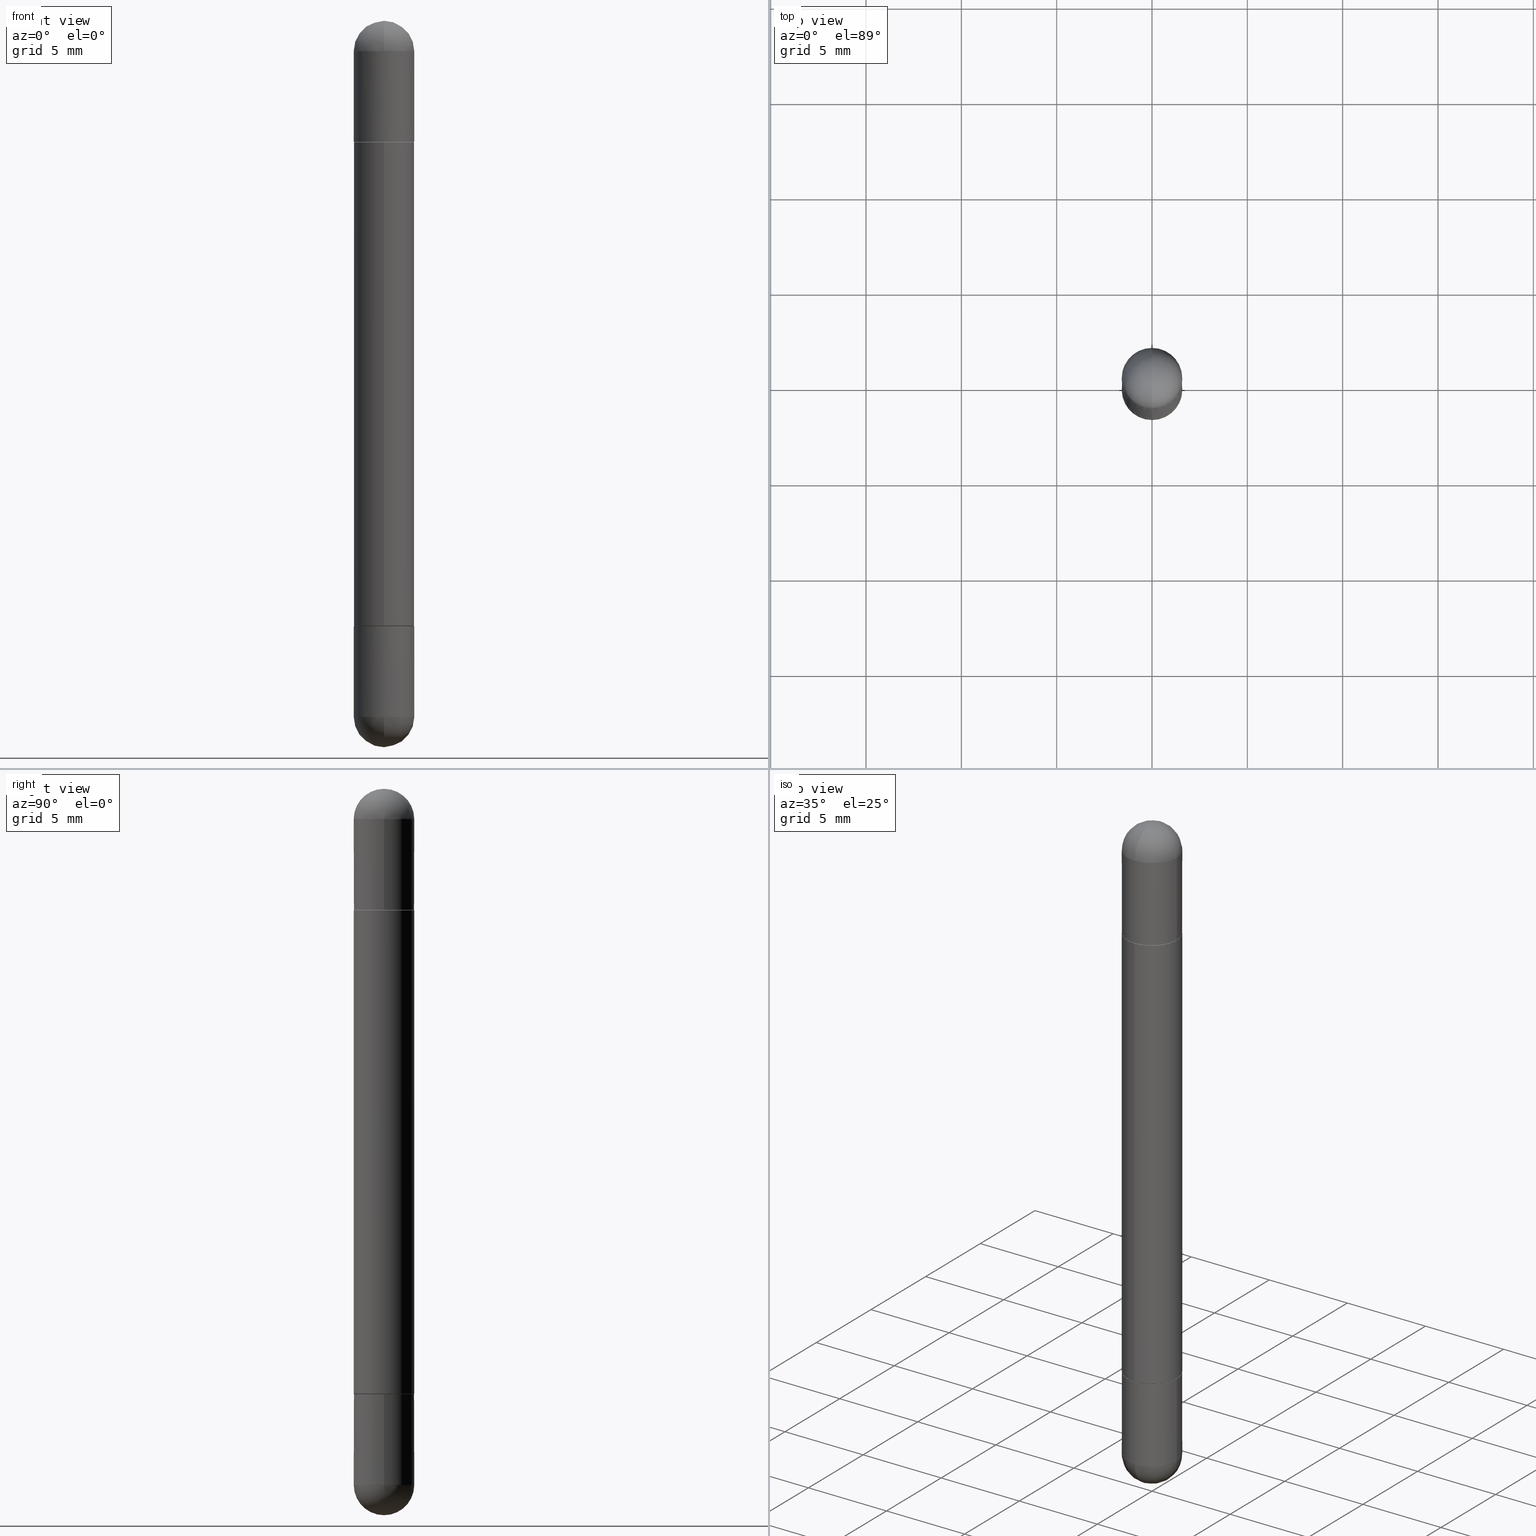
[diagram: canonical four-view strip — front | top / right | iso, engineering-drawing reading convention]
A machine part, canonical four-view strip (front | top / right | iso — engineering-drawing reading convention). The complete STEP part file that produces these views, byte-faithful:
ISO-10303-21;
HEADER;
FILE_DESCRIPTION (( 'STEP AP203' ),
    '1' );
FILE_NAME ('31414.STEP',
    '2024-03-01T12:41:39',
    ( '' ),
    ( '' ),
    'SwSTEP 2.0',
    'SolidWorks 2023',
    '' );
FILE_SCHEMA (( 'CONFIG_CONTROL_DESIGN' ));
ENDSEC;

DATA;
#1 = EDGE_LOOP ( 'NONE', ( #183, #119, #707, #574, #449 ) ) ;
#2 = FACE_OUTER_BOUND ( 'NONE', #755, .T. ) ;
#3 = AXIS2_PLACEMENT_3D ( 'NONE', #23, #145, #397 ) ;
#4 = DIRECTION ( 'NONE',  ( 1.000000000000000000, -6.982962677686261189E-15, 0.000000000000000000 ) ) ;
#5 = VECTOR ( 'NONE', #60, 39.37007874015748143 ) ;
#6 = CIRCLE ( 'NONE', #468, 0.06250000000000022204 ) ;
#7 = ORIENTED_EDGE ( 'NONE', *, *, #357, .T. ) ;
#8 = DIRECTION ( 'NONE',  ( 6.982962677686266711E-15, 1.000000000000000000, -4.370956789862805372E-15 ) ) ;
#9 = SPHERICAL_SURFACE ( 'NONE', #398, 0.06250000000000022204 ) ;
#10 = DIRECTION ( 'NONE',  ( 1.000000000000000000, -6.982962677686269077E-15, 0.000000000000000000 ) ) ;
#11 = EDGE_LOOP ( 'NONE', ( #419, #619, #503, #7 ) ) ;
#12 = CARTESIAN_POINT ( 'NONE',  ( 4.219206268629797776E-16, 0.06149999999999564843, -0.2500000000000001110 ) ) ;
#13 = CARTESIAN_POINT ( 'NONE',  ( 4.253508758618660766E-16, 0.06149999999999564843, -0.2500000000000001110 ) ) ;
#14 = VERTEX_POINT ( 'NONE', #497 ) ;
#15 = CARTESIAN_POINT ( 'NONE',  ( 3.339755826017505569E-29, -5.707577355157435366E-15, 0.000000000000000000 ) ) ;
#16 = CARTESIAN_POINT ( 'NONE',  ( 3.065731949019290085E-29, -4.344618647447427774E-15, -0.2510000000000003895 ) ) ;
#17 = ORIENTED_EDGE ( 'NONE', *, *, #155, .T. ) ;
#18 = CIRCLE ( 'NONE', #174, 0.06250000000000001388 ) ;
#19 = CIRCLE ( 'NONE', #476, 0.06250000000000022204 ) ;
#20 = CIRCLE ( 'NONE', #520, 0.06250000000000001388 ) ;
#21 = SPHERICAL_SURFACE ( 'NONE', #539, 0.06250000000000022204 ) ;
#22 = DIRECTION ( 'NONE',  ( -1.000000000000000000, 6.982962677686266711E-15, -4.883557194083112901E-29 ) ) ;
#23 = CARTESIAN_POINT ( 'NONE',  ( 3.068186498217864923E-29, -4.348097125147546489E-15, -0.2500000000000003331 ) ) ;
#24 = ADVANCED_FACE ( 'NONE', ( #324 ), #9, .T. ) ;
#25 = CARTESIAN_POINT ( 'NONE',  ( 3.065731949019290085E-29, -4.344618647447427774E-15, -1.248999999999999888 ) ) ;
#26 = DIRECTION ( 'NONE',  ( 1.000000000000000000, -6.982962677686269077E-15, 0.000000000000000000 ) ) ;
#27 = ORIENTED_EDGE ( 'NONE', *, *, #321, .T. ) ;
#28 = CARTESIAN_POINT ( 'NONE',  ( -0.06250000000000001388, 4.440892098500627148E-16, -3.074334431409317165E-30 ) ) ;
#29 = AXIS2_PLACEMENT_3D ( 'NONE', #134, #384, #580 ) ;
#30 = PRODUCT_DEFINITION_SHAPE ( 'NONE', 'NONE',  #275 ) ;
#31 = VECTOR ( 'NONE', #118, 39.37007874015748854 ) ;
#32 = CARTESIAN_POINT ( 'NONE',  ( 3.184241630977248732E-29, -5.493186792727072638E-15, -0.06250000000000022204 ) ) ;
#33 = CARTESIAN_POINT ( 'NONE',  ( 3.065731949019290085E-29, -4.344618647447427774E-15, -0.2510000000000003895 ) ) ;
#34 = CC_DESIGN_APPROVAL ( #184, ( #275 ) ) ;
#35 = ORIENTED_EDGE ( 'NONE', *, *, #647, .T. ) ;
#36 = ADVANCED_FACE ( 'NONE', ( #634 ), #767, .F. ) ;
#37 = CARTESIAN_POINT ( 'NONE',  ( 4.364351673554222871E-16, 0.06249999999999565625, -0.2500000000000000555 ) ) ;
#38 = EDGE_CURVE ( 'NONE', #187, #201, #361, .T. ) ;
#39 = EDGE_LOOP ( 'NONE', ( #255, #632, #657, #95 ) ) ;
#40 = ORIENTED_EDGE ( 'NONE', *, *, #215, .F. ) ;
#41 = AXIS2_PLACEMENT_3D ( 'NONE', #157, #407, #533 ) ;
#42 = AXIS2_PLACEMENT_3D ( 'NONE', #129, #716, #217 ) ;
#43 = MANIFOLD_SOLID_BREP ( 'Mirror4[3]', #135 ) ;
#44 = SECURITY_CLASSIFICATION ( '', '', #423 ) ;
#45 = ORIENTED_EDGE ( 'NONE', *, *, #378, .T. ) ;
#46 = DIRECTION ( 'NONE',  ( -2.445468806185136597E-29, 3.491481338843145583E-15, 1.000000000000000000 ) ) ;
#47 = DATE_TIME_ROLE ( 'creation_date' ) ;
#48 = CARTESIAN_POINT ( 'NONE',  ( 3.068186498217864923E-29, -4.348097125147546489E-15, -0.2500000000000003331 ) ) ;
#49 = ORIENTED_EDGE ( 'NONE', *, *, #590, .F. ) ;
#50 = ADVANCED_FACE ( 'NONE', ( #519 ), #594, .T. ) ;
#51 = DIRECTION ( 'NONE',  ( 1.000000000000000000, 0.000000000000000000, 0.000000000000000000 ) ) ;
#52 = DIRECTION ( 'NONE',  ( -0.000000000000000000, -0.000000000000000000, -1.000000000000000000 ) ) ;
#53 = VERTEX_POINT ( 'NONE', #225 ) ;
#54 = CARTESIAN_POINT ( 'NONE',  ( 3.515361408891134418E-29, -5.019004424587023131E-15, -0.06250000000000022204 ) ) ;
#55 = PERSON_AND_ORGANIZATION ( #591, #691 ) ;
#56 = DIRECTION ( 'NONE',  ( 1.000000000000000000, -6.982962677686267499E-15, 0.000000000000000000 ) ) ;
#57 = ORIENTED_EDGE ( 'NONE', *, *, #784, .F. ) ;
#58 = AXIS2_PLACEMENT_3D ( 'NONE', #329, #203, #704 ) ;
#59 = CIRCLE ( 'NONE', #386, 0.06250000000000001388 ) ;
#60 = DIRECTION ( 'NONE',  ( -2.454549198574291714E-29, 3.478477700118036560E-15, -1.000000000000000000 ) ) ;
#61 = COORDINATED_UNIVERSAL_TIME_OFFSET ( 5, 0, .BEHIND. ) ;
#62 = CC_DESIGN_PERSON_AND_ORGANIZATION_ASSIGNMENT ( #370, #692, ( #99 ) ) ;
#63 = EDGE_LOOP ( 'NONE', ( #314, #68, #206, #437 ) ) ;
#64 = FACE_OUTER_BOUND ( 'NONE', #39, .T. ) ;
#65 = EDGE_CURVE ( 'NONE', #551, #71, #470, .T. ) ;
#66 = CARTESIAN_POINT ( 'NONE',  ( 3.515361408891134418E-29, -5.019004424587023131E-15, -0.06250000000000022204 ) ) ;
#67 = CARTESIAN_POINT ( 'NONE',  ( -4.364351673553922611E-16, -0.06250000000000009714, -1.500000000000000666 ) ) ;
#68 = ORIENTED_EDGE ( 'NONE', *, *, #348, .T. ) ;
#69 = DIRECTION ( 'NONE',  ( -6.982962677686265922E-15, -1.000000000000000000, 3.478477700118036560E-15 ) ) ;
#70 = CARTESIAN_POINT ( 'NONE',  ( 0.06250000000000001388, -4.800786840909324141E-15, -0.2500000000000003331 ) ) ;
#71 = VERTEX_POINT ( 'NONE', #465 ) ;
#72 = CARTESIAN_POINT ( 'NONE',  ( 3.068186498217864923E-29, -4.348097125147546489E-15, -0.2500000000000003331 ) ) ;
#73 = CARTESIAN_POINT ( 'NONE',  ( 3.184241630977248732E-29, -5.493186792727072638E-15, -0.06250000000000022204 ) ) ;
#74 = AXIS2_PLACEMENT_3D ( 'NONE', #214, #276, #26 ) ;
#75 = DIRECTION ( 'NONE',  ( 2.445468806185136597E-29, -3.491481338843145583E-15, 1.000000000000000000 ) ) ;
#76 = AXIS2_PLACEMENT_3D ( 'NONE', #108, #683, #51 ) ;
#77 = ORIENTED_EDGE ( 'NONE', *, *, #769, .F. ) ;
#78 = CARTESIAN_POINT ( 'NONE',  ( 3.515361408891134418E-29, -5.019004424587023131E-15, -0.06250000000000022204 ) ) ;
#79 = VERTEX_POINT ( 'NONE', #722 ) ;
#80 = VERTEX_POINT ( 'NONE', #334 ) ;
#81 = LINE ( 'NONE', #770, #540 ) ;
#82 = CARTESIAN_POINT ( 'NONE',  ( 3.515361408891134418E-29, -5.019004424587023131E-15, -0.06250000000000022204 ) ) ;
#83 = FACE_OUTER_BOUND ( 'NONE', #687, .T. ) ;
#84 = DIRECTION ( 'NONE',  ( -7.105427357601000281E-15, -1.000000000000000000, 0.000000000000000000 ) ) ;
#85 = FACE_OUTER_BOUND ( 'NONE', #1, .T. ) ;
#86 = AXIS2_PLACEMENT_3D ( 'NONE', #443, #375, #646 ) ;
#87 = CIRCLE ( 'NONE', #382, 0.06250000000000001388 ) ;
#88 = VECTOR ( 'NONE', #424, 39.37007874015748143 ) ;
#89 = APPROVAL_PERSON_ORGANIZATION ( #552, #246, #801 ) ;
#90 = FACE_OUTER_BOUND ( 'NONE', #429, .T. ) ;
#91 = ORIENTED_EDGE ( 'NONE', *, *, #321, .F. ) ;
#92 = EDGE_CURVE ( 'NONE', #229, #642, #151, .T. ) ;
#93 = PLANE ( 'NONE',  #723 ) ;
#94 = DIRECTION ( 'NONE',  ( -6.982962677686266711E-15, -1.000000000000000000, -3.278217592397107185E-15 ) ) ;
#95 = ORIENTED_EDGE ( 'NONE', *, *, #446, .T. ) ;
#96 = DIRECTION ( 'NONE',  ( -1.000000000000000000, 6.982962677686265922E-15, 4.883557194083112340E-29 ) ) ;
#97 = ADVANCED_FACE ( 'NONE', ( #710 ), #193, .T. ) ;
#98 = CARTESIAN_POINT ( 'NONE',  ( 3.184241630977248732E-29, -5.493186792727072638E-15, -0.06250000000000022204 ) ) ;
#99 = PRODUCT ( '31414', '31414', '', ( #494 ) ) ;
#100 = VECTOR ( 'NONE', #799, 39.37007874015748143 ) ;
#101 = VERTEX_POINT ( 'NONE', #344 ) ;
#102 = DIRECTION ( 'NONE',  ( -2.454549198574291714E-29, 3.478477700118036560E-15, -1.000000000000000000 ) ) ;
#103 = VERTEX_POINT ( 'NONE', #142 ) ;
#104 = DIRECTION ( 'NONE',  ( -6.982962677686266711E-15, -1.000000000000000000, 4.370956789862809317E-15 ) ) ;
#105 = VERTEX_POINT ( 'NONE', #775 ) ;
#106 = DIRECTION ( 'NONE',  ( -6.982962677686265922E-15, -1.000000000000000000, -3.331521943493004098E-15 ) ) ;
#107 = CIRCLE ( 'NONE', #623, 0.06250000000000022204 ) ;
#108 = CARTESIAN_POINT ( 'NONE',  ( 0.000000000000000000, 0.000000000000000000, 0.000000000000000000 ) ) ;
#109 = CIRCLE ( 'NONE', #806, 0.06149999999999999911 ) ;
#110 = CARTESIAN_POINT ( 'NONE',  ( -0.06250000000000001388, -4.262896924209756684E-15, -0.2500000000000003331 ) ) ;
#111 = EDGE_LOOP ( 'NONE', ( #554, #731, #809, #682 ) ) ;
#112 = EDGE_CURVE ( 'NONE', #695, #14, #218, .T. ) ;
#113 = CARTESIAN_POINT ( 'NONE',  ( 3.068186498217864923E-29, -4.348097125147546489E-15, -1.250000000000000000 ) ) ;
#114 = ORIENTED_EDGE ( 'NONE', *, *, #466, .T. ) ;
#115 = ADVANCED_FACE ( 'NONE', ( #85 ), #350, .T. ) ;
#116 = DIRECTION ( 'NONE',  ( -2.454549198574291714E-29, 3.478477700118036560E-15, -1.000000000000000000 ) ) ;
#117 = EDGE_CURVE ( 'NONE', #551, #173, #517, .T. ) ;
#118 = DIRECTION ( 'NONE',  ( -4.937700262164799689E-15, -0.7071067811865812125, -0.7071067811865135999 ) ) ;
#119 = ORIENTED_EDGE ( 'NONE', *, *, #138, .F. ) ;
#120 = CIRCLE ( 'NONE', #678, 0.06250000000000001388 ) ;
#121 = AXIS2_PLACEMENT_3D ( 'NONE', #182, #248, #258 ) ;
#122 = FACE_OUTER_BOUND ( 'NONE', #724, .T. ) ;
#123 = APPLICATION_PROTOCOL_DEFINITION ( 'international standard', 'config_control_design', 1994, #544 ) ;
#124 = VERTEX_POINT ( 'NONE', #779 ) ;
#125 = CARTESIAN_POINT ( 'NONE',  ( 0.000000000000000000, 0.000000000000000000, -1.500000000000000444 ) ) ;
#126 = ORIENTED_EDGE ( 'NONE', *, *, #405, .F. ) ;
#127 = DIRECTION ( 'NONE',  ( 1.000000000000000000, -6.982962677686269077E-15, 0.000000000000000000 ) ) ;
#128 = VERTEX_POINT ( 'NONE', #281 ) ;
#129 = CARTESIAN_POINT ( 'NONE',  ( 3.068186498217864923E-29, -4.348097125147546489E-15, -0.2500000000000003331 ) ) ;
#130 = ORIENTED_EDGE ( 'NONE', *, *, #789, .F. ) ;
#131 = CARTESIAN_POINT ( 'NONE',  ( 4.364351673554259849E-16, 0.06249999999999485828, -1.437500000000000444 ) ) ;
#132 = ORIENTED_EDGE ( 'NONE', *, *, #296, .T. ) ;
#133 = CARTESIAN_POINT ( 'NONE',  ( 1.840911898930719346E-29, -2.608858275088528603E-15, -0.7500000000000002220 ) ) ;
#134 = CARTESIAN_POINT ( 'NONE',  ( 3.515361408891134418E-29, -5.019004424587023131E-15, -1.437500000000000222 ) ) ;
#135 = CLOSED_SHELL ( 'NONE', ( #435, #670, #172, #685, #115 ) ) ;
#136 = DIRECTION ( 'NONE',  ( 6.982962677686266711E-15, 1.000000000000000000, 3.551402391763529759E-15 ) ) ;
#137 = AXIS2_PLACEMENT_3D ( 'NONE', #626, #561, #56 ) ;
#138 = EDGE_CURVE ( 'NONE', #739, #124, #18, .T. ) ;
#139 = CIRCLE ( 'NONE', #211, 0.06250000000000022204 ) ;
#140 = ORIENTED_EDGE ( 'NONE', *, *, #374, .T. ) ;
#141 = DIRECTION ( 'NONE',  ( 2.454549198574291714E-29, -3.478477700118036955E-15, 1.000000000000000000 ) ) ;
#142 = CARTESIAN_POINT ( 'NONE',  ( 4.253508758618660766E-16, 0.06149999999999564843, -0.2500000000000001110 ) ) ;
#143 = FACE_OUTER_BOUND ( 'NONE', #111, .T. ) ;
#144 = DIRECTION ( 'NONE',  ( -1.000000000000000000, 0.000000000000000000, 0.000000000000000000 ) ) ;
#145 = DIRECTION ( 'NONE',  ( -2.454549198574291714E-29, 3.478477700118036955E-15, -1.000000000000000000 ) ) ;
#146 = ORIENTED_EDGE ( 'NONE', *, *, #261, .F. ) ;
#147 = EDGE_CURVE ( 'NONE', #677, #173, #107, .T. ) ;
#148 = CARTESIAN_POINT ( 'NONE',  ( 3.068186498217864923E-29, -4.348097125147546489E-15, -1.250000000000000000 ) ) ;
#149 = EDGE_CURVE ( 'NONE', #800, #273, #475, .T. ) ;
#150 = EDGE_LOOP ( 'NONE', ( #404, #796, #132, #335, #693 ) ) ;
#151 = CIRCLE ( 'NONE', #231, 0.06250000000000016653 ) ;
#152 = VECTOR ( 'NONE', #556, 39.37007874015748143 ) ;
#153 = LINE ( 'NONE', #160, #665 ) ;
#154 = DIRECTION ( 'NONE',  ( 2.445468806185136597E-29, -3.491481338843145583E-15, 1.000000000000000000 ) ) ;
#155 = EDGE_CURVE ( 'NONE', #71, #263, #570, .T. ) ;
#156 = DIRECTION ( 'NONE',  ( 1.000000000000000000, -6.982962677686261189E-15, 0.000000000000000000 ) ) ;
#157 = CARTESIAN_POINT ( 'NONE',  ( 0.000000000000000000, 0.000000000000000000, -1.500000000000000444 ) ) ;
#158 = ORIENTED_EDGE ( 'NONE', *, *, #578, .T. ) ;
#159 = LINE ( 'NONE', #603, #176 ) ;
#160 = CARTESIAN_POINT ( 'NONE',  ( 0.06250000000000001388, -4.364351673553918173E-16, 3.047610484872460571E-30 ) ) ;
#161 = VERTEX_POINT ( 'NONE', #291 ) ;
#162 = AXIS2_PLACEMENT_3D ( 'NONE', #125, #629, #810 ) ;
#163 = AXIS2_PLACEMENT_3D ( 'NONE', #471, #669, #606 ) ;
#164 = ORIENTED_EDGE ( 'NONE', *, *, #700, .F. ) ;
#165 = DIRECTION ( 'NONE',  ( -6.982962677686266711E-15, -1.000000000000000000, -3.278217592397107185E-15 ) ) ;
#166 = CARTESIAN_POINT ( 'NONE',  ( 3.515361408891134418E-29, -5.019004424587023131E-15, -1.437500000000000222 ) ) ;
#167 = ADVANCED_FACE ( 'NONE', ( #284 ), #461, .F. ) ;
#168 = VERTEX_POINT ( 'NONE', #459 ) ;
#169 = DIRECTION ( 'NONE',  ( 1.000000000000000000, -6.982962677686261189E-15, 0.000000000000000000 ) ) ;
#170 = APPROVAL_STATUS ( 'not_yet_approved' ) ;
#171 = DIRECTION ( 'NONE',  ( -2.454549198574291714E-29, 3.478477700118036955E-15, -1.000000000000000000 ) ) ;
#172 = ADVANCED_FACE ( 'NONE', ( #717 ), #753, .T. ) ;
#173 = VERTEX_POINT ( 'NONE', #457 ) ;
#174 = AXIS2_PLACEMENT_3D ( 'NONE', #655, #154, #282 ) ;
#175 = CALENDAR_DATE ( 2024, 1, 3 ) ;
#176 = VECTOR ( 'NONE', #477, 39.37007874015748143 ) ;
#177 = CARTESIAN_POINT ( 'NONE',  ( 4.369837824924922257E-16, 0.06149999999999564843, -1.250000000000000222 ) ) ;
#178 = AXIS2_PLACEMENT_3D ( 'NONE', #72, #508, #583 ) ;
#179 = ORIENTED_EDGE ( 'NONE', *, *, #647, .F. ) ;
#180 = CYLINDRICAL_SURFACE ( 'NONE', #624, 0.06250000000000009714 ) ;
#181 = APPROVAL_STATUS ( 'not_yet_approved' ) ;
#182 = CARTESIAN_POINT ( 'NONE',  ( 3.065731949019290085E-29, -4.344618647447427774E-15, -0.2510000000000003895 ) ) ;
#183 = ORIENTED_EDGE ( 'NONE', *, *, #216, .F. ) ;
#184 = APPROVAL ( #170, 'UNSPECIFIED' ) ;
#185 = CARTESIAN_POINT ( 'NONE',  ( 4.287811248607212650E-16, 0.06250000000000009714, -1.500000000000000222 ) ) ;
#186 = DATE_AND_TIME ( #240, #656 ) ;
#187 = VERTEX_POINT ( 'NONE', #131 ) ;
#188 = DIRECTION ( 'NONE',  ( -6.982962677686265922E-15, -1.000000000000000000, -3.331521943493004098E-15 ) ) ;
#189 = DIRECTION ( 'NONE',  ( -2.454549198574291714E-29, 3.478477700118036955E-15, 1.000000000000000000 ) ) ;
#190 = DIRECTION ( 'NONE',  ( 2.445468806185136597E-29, -3.491481338843145583E-15, 1.000000000000000000 ) ) ;
#191 = PERSON_AND_ORGANIZATION_ROLE ( 'creator' ) ;
#192 = VERTEX_POINT ( 'NONE', #768 ) ;
#193 = CONICAL_SURFACE ( 'NONE', #3, 0.06149999999999999911, 0.7853981633974995713 ) ;
#194 = CYLINDRICAL_SURFACE ( 'NONE', #571, 0.06250000000000009714 ) ;
#195 = VECTOR ( 'NONE', #445, 39.37007874015748143 ) ;
#196 = CARTESIAN_POINT ( 'NONE',  ( -4.364351673553621857E-16, -0.06250000000000452416, -0.2510000000000006115 ) ) ;
#197 = ORIENTED_EDGE ( 'NONE', *, *, #671, .F. ) ;
#198 = SPHERICAL_SURFACE ( 'NONE', #399, 0.06250000000000022204 ) ;
#199 = VERTEX_POINT ( 'NONE', #452 ) ;
#200 = CARTESIAN_POINT ( 'NONE',  ( 3.515361408891134418E-29, -5.019004424587023131E-15, -0.06250000000000022204 ) ) ;
#201 = VERTEX_POINT ( 'NONE', #569 ) ;
#202 = CARTESIAN_POINT ( 'NONE',  ( 4.405364961712932721E-16, 0.06149999999999564843, -1.250000000000000222 ) ) ;
#203 = DIRECTION ( 'NONE',  ( 0.000000000000000000, 0.000000000000000000, 1.000000000000000000 ) ) ;
#204 = EDGE_CURVE ( 'NONE', #79, #267, #805, .T. ) ;
#205 = CARTESIAN_POINT ( 'NONE',  ( 3.184241630977248732E-29, -5.493186792727072638E-15, -0.06250000000000022204 ) ) ;
#206 = ORIENTED_EDGE ( 'NONE', *, *, #92, .T. ) ;
#207 = DIRECTION ( 'NONE',  ( 1.000000000000000000, -6.982962677686266711E-15, -4.883557194083112901E-29 ) ) ;
#208 = AXIS2_PLACEMENT_3D ( 'NONE', #200, #712, #272 ) ;
#209 = DIRECTION ( 'NONE',  ( -2.454549198574291714E-29, 3.478477700118036955E-15, 1.000000000000000000 ) ) ;
#210 = AXIS2_PLACEMENT_3D ( 'NONE', #617, #52, #144 ) ;
#211 = AXIS2_PLACEMENT_3D ( 'NONE', #660, #293, #598 ) ;
#212 = EDGE_CURVE ( 'NONE', #173, #101, #120, .T. ) ;
#213 = PLANE ( 'NONE',  #807 ) ;
#214 = CARTESIAN_POINT ( 'NONE',  ( 3.056836007731421306E-29, -4.364351673553932471E-15, -0.2500000000000003331 ) ) ;
#215 = EDGE_CURVE ( 'NONE', #695, #661, #299, .T. ) ;
#216 = EDGE_CURVE ( 'NONE', #124, #463, #566, .T. ) ;
#217 = DIRECTION ( 'NONE',  ( -6.982962677686265922E-15, -1.000000000000000000, -3.331521943493004098E-15 ) ) ;
#218 = LINE ( 'NONE', #650, #600 ) ;
#219 = ADVANCED_FACE ( 'NONE', ( #143 ), #781, .T. ) ;
#220 = DIRECTION ( 'NONE',  ( 1.000000000000000000, -6.982962677686269077E-15, 0.000000000000000000 ) ) ;
#221 = DIRECTION ( 'NONE',  ( -6.982962677686266711E-15, -1.000000000000000000, -3.278217592397107185E-15 ) ) ;
#222 = VECTOR ( 'NONE', #531, 39.37007874015748143 ) ;
#223 = AXIS2_PLACEMENT_3D ( 'NONE', #148, #396, #654 ) ;
#224 = DIRECTION ( 'NONE',  ( 1.000000000000000000, -6.982962677686267499E-15, 4.876176775795935793E-29 ) ) ;
#225 = CARTESIAN_POINT ( 'NONE',  ( -0.06250000000000001388, -4.247588839220414790E-15, -1.250000000000000000 ) ) ;
#226 = ORIENTED_EDGE ( 'NONE', *, *, #803, .T. ) ;
#227 = CARTESIAN_POINT ( 'NONE',  ( 3.056836007731421306E-29, -4.364351673553932471E-15, -0.2500000000000003331 ) ) ;
#228 = DIRECTION ( 'NONE',  ( 1.000000000000000000, -6.982962677686261189E-15, 0.000000000000000000 ) ) ;
#229 = VERTEX_POINT ( 'NONE', #688 ) ;
#230 = DIRECTION ( 'NONE',  ( -2.445468806185136877E-29, 3.491481338843145188E-15, 1.000000000000000000 ) ) ;
#231 = AXIS2_PLACEMENT_3D ( 'NONE', #16, #525, #221 ) ;
#232 = CIRCLE ( 'NONE', #311, 0.06149999999999999911 ) ;
#233 = FACE_OUTER_BOUND ( 'NONE', #480, .T. ) ;
#234 = CIRCLE ( 'NONE', #223, 0.06149999999999999911 ) ;
#235 = ORIENTED_EDGE ( 'NONE', *, *, #278, .T. ) ;
#236 = CARTESIAN_POINT ( 'NONE',  ( 3.515361408891134418E-29, -5.019004424587023131E-15, -1.437500000000000222 ) ) ;
#237 = ADVANCED_FACE ( 'NONE', ( #122 ), #505, .T. ) ;
#238 = COORDINATED_UNIVERSAL_TIME_OFFSET ( 5, 0, .BEHIND. ) ;
#239 = ORIENTED_EDGE ( 'NONE', *, *, #651, .T. ) ;
#240 = CALENDAR_DATE ( 2024, 1, 3 ) ;
#241 = CARTESIAN_POINT ( 'NONE',  ( 3.184241630977248732E-29, -5.493186792727072638E-15, -0.06250000000000022204 ) ) ;
#242 = ORIENTED_EDGE ( 'NONE', *, *, #393, .T. ) ;
#243 = LINE ( 'NONE', #185, #152 ) ;
#244 = AXIS2_PLACEMENT_3D ( 'NONE', #82, #395, #596 ) ;
#245 = COORDINATED_UNIVERSAL_TIME_OFFSET ( 5, 0, .BEHIND. ) ;
#246 = APPROVAL ( #181, 'UNSPECIFIED' ) ;
#247 = CIRCLE ( 'NONE', #121, 0.06250000000000016653 ) ;
#248 = DIRECTION ( 'NONE',  ( 2.454549198574291714E-29, -3.478477700118036955E-15, 1.000000000000000000 ) ) ;
#249 = APPROVAL_PERSON_ORGANIZATION ( #608, #732, #431 ) ;
#250 = EDGE_LOOP ( 'NONE', ( #516, #811 ) ) ;
#251 = EDGE_CURVE ( 'NONE', #53, #192, #338, .T. ) ;
#252 = SHAPE_DEFINITION_REPRESENTATION ( #30, #711 ) ;
#253 = ORIENTED_EDGE ( 'NONE', *, *, #780, .F. ) ;
#254 = LINE ( 'NONE', #568, #31 ) ;
#255 = ORIENTED_EDGE ( 'NONE', *, *, #466, .F. ) ;
#256 = DIRECTION ( 'NONE',  ( 1.000000000000000000, -6.860497997771530774E-15, -4.840798879624142912E-29 ) ) ;
#257 = PERSON_AND_ORGANIZATION ( #591, #691 ) ;
#258 = DIRECTION ( 'NONE',  ( -6.982962677686266711E-15, -1.000000000000000000, -3.278217592397107185E-15 ) ) ;
#259 = DIRECTION ( 'NONE',  ( -6.982962677686265922E-15, -1.000000000000000000, 4.442029257990672131E-15 ) ) ;
#260 = ORIENTED_EDGE ( 'NONE', *, *, #215, .T. ) ;
#261 = EDGE_CURVE ( 'NONE', #105, #739, #309, .T. ) ;
#262 = CYLINDRICAL_SURFACE ( 'NONE', #401, 0.06250000000000001388 ) ;
#263 = VERTEX_POINT ( 'NONE', #70 ) ;
#264 = AXIS2_PLACEMENT_3D ( 'NONE', #205, #256, #347 ) ;
#265 = AXIS2_PLACEMENT_3D ( 'NONE', #25, #727, #104 ) ;
#266 = DIRECTION ( 'NONE',  ( 1.000000000000000000, -6.982962677686261189E-15, 0.000000000000000000 ) ) ;
#267 = VERTEX_POINT ( 'NONE', #13 ) ;
#268 = EDGE_CURVE ( 'NONE', #667, #551, #87, .T. ) ;
#269 = CARTESIAN_POINT ( 'NONE',  ( 3.068186498217864923E-29, -4.348097125147546489E-15, -0.2500000000000003331 ) ) ;
#270 = DIRECTION ( 'NONE',  ( 1.000000000000000000, -6.982962677686266711E-15, -4.883557194083112901E-29 ) ) ;
#271 = ORIENTED_EDGE ( 'NONE', *, *, #393, .F. ) ;
#272 = DIRECTION ( 'NONE',  ( 1.000000000000000000, -6.982962677686261189E-15, 0.000000000000000000 ) ) ;
#273 = VERTEX_POINT ( 'NONE', #196 ) ;
#274 = FACE_OUTER_BOUND ( 'NONE', #381, .T. ) ;
#275 = PRODUCT_DEFINITION ( 'UNKNOWN', '', #301, #776 ) ;
#276 = DIRECTION ( 'NONE',  ( 2.445468806185136597E-29, -3.491481338843145583E-15, 1.000000000000000000 ) ) ;
#277 = AXIS2_PLACEMENT_3D ( 'NONE', #515, #433, #136 ) ;
#278 = EDGE_CURVE ( 'NONE', #124, #487, #555, .T. ) ;
#279 = AXIS2_PLACEMENT_3D ( 'NONE', #133, #579, #649 ) ;
#280 = DIRECTION ( 'NONE',  ( 2.438088387897960049E-29, -3.491481338843145188E-15, 1.000000000000000000 ) ) ;
#281 = CARTESIAN_POINT ( 'NONE',  ( -4.294522046776746430E-16, -0.06150000000000434286, -0.2500000000000005551 ) ) ;
#282 = DIRECTION ( 'NONE',  ( 1.000000000000000000, -6.982962677686261189E-15, 0.000000000000000000 ) ) ;
#283 = CARTESIAN_POINT ( 'NONE',  ( 0.06250000000000001388, -5.128113216425869076E-15, -0.06250000000000022204 ) ) ;
#284 = FACE_OUTER_BOUND ( 'NONE', #513, .T. ) ;
#285 = ORIENTED_EDGE ( 'NONE', *, *, #759, .T. ) ;
#286 = AXIS2_PLACEMENT_3D ( 'NONE', #387, #189, #259 ) ;
#287 = CIRCLE ( 'NONE', #529, 0.06250000000000016653 ) ;
#288 = CARTESIAN_POINT ( 'NONE',  ( 0.06250000000000001388, -4.364351673553918173E-16, -1.500000000000000444 ) ) ;
#289 = CIRCLE ( 'NONE', #489, 0.06250000000000001388 ) ;
#290 = CARTESIAN_POINT ( 'NONE',  ( 4.287811248607524250E-16, 0.06249999999999581585, -0.2510000000000002229 ) ) ;
#291 = CARTESIAN_POINT ( 'NONE',  ( 4.287811248607516854E-16, 0.06249999999999748118, -0.7500000000000002220 ) ) ;
#292 = EDGE_CURVE ( 'NONE', #192, #53, #434, .T. ) ;
#293 = DIRECTION ( 'NONE',  ( 1.000000000000000000, -6.982962677686265922E-15, 4.883557194083112340E-29 ) ) ;
#294 = ORIENTED_EDGE ( 'NONE', *, *, #759, .F. ) ;
#295 =( NAMED_UNIT ( * ) PLANE_ANGLE_UNIT ( ) SI_UNIT ( $, .RADIAN. ) );
#296 = EDGE_CURVE ( 'NONE', #463, #414, #538, .T. ) ;
#297 = ORIENTED_EDGE ( 'NONE', *, *, #92, .F. ) ;
#298 = ADVANCED_FACE ( 'NONE', ( #83 ), #499, .T. ) ;
#299 = CIRCLE ( 'NONE', #286, 0.06149999999999999911 ) ;
#300 = CIRCLE ( 'NONE', #488, 0.06250000000000001388 ) ;
#301 = PRODUCT_DEFINITION_FORMATION_WITH_SPECIFIED_SOURCE ( 'ANY', '', #99, .NOT_KNOWN. ) ;
#302 = ORIENTED_EDGE ( 'NONE', *, *, #413, .T. ) ;
#303 = CALENDAR_DATE ( 2024, 1, 3 ) ;
#304 = LINE ( 'NONE', #550, #100 ) ;
#305 = ORIENTED_EDGE ( 'NONE', *, *, #319, .T. ) ;
#306 = DATE_TIME_ROLE ( 'classification_date' ) ;
#307 = DIRECTION ( 'NONE',  ( -6.982962677686265133E-15, -1.000000000000000000, -4.370956789862814050E-15 ) ) ;
#308 = ORIENTED_EDGE ( 'NONE', *, *, #472, .F. ) ;
#309 = CIRCLE ( 'NONE', #528, 0.06250000000000022204 ) ;
#310 = PERSON_AND_ORGANIZATION_ROLE ( 'design_supplier' ) ;
#311 = AXIS2_PLACEMENT_3D ( 'NONE', #269, #141, #341 ) ;
#312 = LINE ( 'NONE', #684, #385 ) ;
#313 = COORDINATED_UNIVERSAL_TIME_OFFSET ( 5, 0, .BEHIND. ) ;
#314 = ORIENTED_EDGE ( 'NONE', *, *, #618, .F. ) ;
#315 = CYLINDRICAL_SURFACE ( 'NONE', #690, 0.06250000000000009714 ) ;
#316 = EDGE_LOOP ( 'NONE', ( #791, #567, #416, #308 ) ) ;
#317 = ORIENTED_EDGE ( 'NONE', *, *, #792, .F. ) ;
#318 = CARTESIAN_POINT ( 'NONE',  ( 0.000000000000000000, 0.000000000000000000, -1.500000000000000444 ) ) ;
#319 = EDGE_CURVE ( 'NONE', #105, #487, #421, .T. ) ;
#320 = DIRECTION ( 'NONE',  ( 2.454549198574291714E-29, -3.478477700118036955E-15, 1.000000000000000000 ) ) ;
#321 = EDGE_CURVE ( 'NONE', #201, #53, #794, .T. ) ;
#322 = VECTOR ( 'NONE', #584, 39.37007874015748143 ) ;
#323 = PLANE ( 'NONE',  #439 ) ;
#324 = FACE_OUTER_BOUND ( 'NONE', #464, .T. ) ;
#325 = AXIS2_PLACEMENT_3D ( 'NONE', #696, #627, #127 ) ;
#326 = MANIFOLD_SOLID_BREP ( 'Combine1', #719 ) ;
#327 = DIRECTION ( 'NONE',  ( -2.454549198574291714E-29, 3.478477700118036955E-15, -1.000000000000000000 ) ) ;
#328 = CARTESIAN_POINT ( 'NONE',  ( 4.364351673554259849E-16, 0.06249999999999485828, -0.06250000000000000000 ) ) ;
#329 = CARTESIAN_POINT ( 'NONE',  ( 0.000000000000000000, 0.000000000000000000, -0.7500000000000002220 ) ) ;
#330 = DIRECTION ( 'NONE',  ( -6.982962677686265922E-15, -1.000000000000000000, 4.442029257990672131E-15 ) ) ;
#331 = UNCERTAINTY_MEASURE_WITH_UNIT (LENGTH_MEASURE( 1.000000000000000082E-05 ), #666, 'distance_accuracy_value', 'NONE');
#332 = EDGE_CURVE ( 'NONE', #737, #414, #481, .T. ) ;
#333 = ORIENTED_EDGE ( 'NONE', *, *, #645, .F. ) ;
#334 = CARTESIAN_POINT ( 'NONE',  ( 4.287811248607399511E-16, 0.06249999999999582279, -1.249000000000000332 ) ) ;
#335 = ORIENTED_EDGE ( 'NONE', *, *, #332, .F. ) ;
#336 = LINE ( 'NONE', #12, #195 ) ;
#337 = CARTESIAN_POINT ( 'NONE',  ( -0.06250000000000001388, 4.287811248607208706E-16, -1.500000000000000444 ) ) ;
#338 = CIRCLE ( 'NONE', #436, 0.06250000000000001388 ) ;
#339 = AXIS2_PLACEMENT_3D ( 'NONE', #362, #46, #547 ) ;
#340 = CIRCLE ( 'NONE', #265, 0.06250000000000016653 ) ;
#341 = DIRECTION ( 'NONE',  ( -6.982962677686265922E-15, -1.000000000000000000, -3.331521943493004098E-15 ) ) ;
#342 = EDGE_LOOP ( 'NONE', ( #317, #35, #536, #509 ) ) ;
#343 = DIRECTION ( 'NONE',  ( 1.000000000000000000, -6.982962677686269077E-15, 0.000000000000000000 ) ) ;
#344 = CARTESIAN_POINT ( 'NONE',  ( 0.06250000000000001388, -5.128113216425869076E-15, -0.06250000000000022204 ) ) ;
#345 = MANIFOLD_SOLID_BREP ( 'Body-Move/Copy2[1]', #586 ) ;
#346 = EDGE_LOOP ( 'NONE', ( #609, #742, #333, #126 ) ) ;
#347 = DIRECTION ( 'NONE',  ( 6.860497997771530774E-15, 1.000000000000000000, 0.000000000000000000 ) ) ;
#348 = EDGE_CURVE ( 'NONE', #103, #229, #159, .T. ) ;
#349 = DIRECTION ( 'NONE',  ( -1.000000000000000000, 6.982962677686265922E-15, 4.876176775795935793E-29 ) ) ;
#350 = CYLINDRICAL_SURFACE ( 'NONE', #41, 0.06250000000000001388 ) ;
#351 = ORIENTED_EDGE ( 'NONE', *, *, #38, .T. ) ;
#352 = AXIS2_PLACEMENT_3D ( 'NONE', #614, #752, #188 ) ;
#353 = CARTESIAN_POINT ( 'NONE',  ( 3.068186498217864923E-29, -4.348097125147546489E-15, -0.2500000000000003331 ) ) ;
#354 = CC_DESIGN_SECURITY_CLASSIFICATION ( #44, ( #301 ) ) ;
#355 = DIRECTION ( 'NONE',  ( 2.438088387897960049E-29, -3.491481338843145188E-15, 1.000000000000000000 ) ) ;
#356 = ORIENTED_EDGE ( 'NONE', *, *, #268, .T. ) ;
#357 = EDGE_CURVE ( 'NONE', #273, #800, #363, .T. ) ;
#358 = ORIENTED_EDGE ( 'NONE', *, *, #769, .T. ) ;
#359 =( NAMED_UNIT ( * ) SI_UNIT ( $, .STERADIAN. ) SOLID_ANGLE_UNIT ( ) );
#360 = ORIENTED_EDGE ( 'NONE', *, *, #292, .T. ) ;
#361 = CIRCLE ( 'NONE', #29, 0.06250000000000001388 ) ;
#362 = CARTESIAN_POINT ( 'NONE',  ( 3.515361408891134418E-29, -5.019004424587023131E-15, -1.437500000000000222 ) ) ;
#363 = CIRCLE ( 'NONE', #730, 0.06250000000000016653 ) ;
#364 = PERSON_AND_ORGANIZATION ( #591, #691 ) ;
#365 = DIRECTION ( 'NONE',  ( -2.454549198574291434E-29, 3.478477700118036560E-15, 1.000000000000000000 ) ) ;
#366 = EDGE_LOOP ( 'NONE', ( #146, #305, #798, #302 ) ) ;
#367 = CALENDAR_DATE ( 2024, 1, 3 ) ;
#368 = DIRECTION ( 'NONE',  ( 6.982962677686266711E-15, 1.000000000000000000, 3.551402391763529759E-15 ) ) ;
#369 = VERTEX_POINT ( 'NONE', #541 ) ;
#370 = PERSON_AND_ORGANIZATION ( #591, #691 ) ;
#371 = CYLINDRICAL_SURFACE ( 'NONE', #137, 0.06250000000000001388 ) ;
#372 = EDGE_LOOP ( 'NONE', ( #605, #765, #582, #49 ) ) ;
#373 = DIRECTION ( 'NONE',  ( 1.000000000000000000, -6.982962677686266711E-15, -4.883557194083112901E-29 ) ) ;
#374 = EDGE_CURVE ( 'NONE', #201, #168, #300, .T. ) ;
#375 = DIRECTION ( 'NONE',  ( -2.445468806185136597E-29, 3.491481338843145583E-15, 1.000000000000000000 ) ) ;
#376 = EDGE_LOOP ( 'NONE', ( #351, #27, #425, #294, #728 ) ) ;
#377 = CARTESIAN_POINT ( 'NONE',  ( -4.287811248606879849E-16, -0.06250000000000537070, -0.06250000000000044409 ) ) ;
#378 = EDGE_CURVE ( 'NONE', #267, #79, #109, .T. ) ;
#379 = CARTESIAN_POINT ( 'NONE',  ( 3.068186498217864923E-29, -4.348097125147546489E-15, -0.2500000000000003331 ) ) ;
#380 = CARTESIAN_POINT ( 'NONE',  ( 0.000000000000000000, 0.000000000000000000, -1.500000000000000444 ) ) ;
#381 = EDGE_LOOP ( 'NONE', ( #130, #672 ) ) ;
#382 = AXIS2_PLACEMENT_3D ( 'NONE', #758, #75, #266 ) ;
#383 = FACE_OUTER_BOUND ( 'NONE', #686, .T. ) ;
#384 = DIRECTION ( 'NONE',  ( -2.445468806185136597E-29, 3.491481338843145583E-15, 1.000000000000000000 ) ) ;
#385 = VECTOR ( 'NONE', #116, 39.37007874015748143 ) ;
#386 = AXIS2_PLACEMENT_3D ( 'NONE', #166, #725, #156 ) ;
#387 = CARTESIAN_POINT ( 'NONE',  ( 3.068186498217864923E-29, -4.348097125147546489E-15, -1.250000000000000000 ) ) ;
#388 = CC_DESIGN_PERSON_AND_ORGANIZATION_ASSIGNMENT ( #740, #680, ( #44 ) ) ;
#389 = EDGE_LOOP ( 'NONE', ( #40, #164 ) ) ;
#390 = CARTESIAN_POINT ( 'NONE',  ( -4.364351673553621857E-16, -0.06250000000000452416, -0.2510000000000006115 ) ) ;
#391 = DIRECTION ( 'NONE',  ( -4.937700262164799689E-15, -0.7071067811865812125, 0.7071067811865135999 ) ) ;
#392 = CARTESIAN_POINT ( 'NONE',  ( 3.068186498217864923E-29, -4.348097125147546489E-15, -1.250000000000000000 ) ) ;
#393 = EDGE_CURVE ( 'NONE', #168, #199, #653, .T. ) ;
#394 = CARTESIAN_POINT ( 'NONE',  ( 3.184241630977248732E-29, -5.493186792727072638E-15, -1.437500000000000222 ) ) ;
#395 = DIRECTION ( 'NONE',  ( 2.445468806185136597E-29, -3.491481338843145583E-15, 1.000000000000000000 ) ) ;
#396 = DIRECTION ( 'NONE',  ( -2.454549198574291714E-29, 3.478477700118036955E-15, 1.000000000000000000 ) ) ;
#397 = DIRECTION ( 'NONE',  ( -6.982962677686265922E-15, -1.000000000000000000, -3.331521943493004098E-15 ) ) ;
#398 = AXIS2_PLACEMENT_3D ( 'NONE', #73, #270, #511 ) ;
#399 = AXIS2_PLACEMENT_3D ( 'NONE', #394, #514, #8 ) ;
#400 = ORIENTED_EDGE ( 'NONE', *, *, #446, .F. ) ;
#401 = AXIS2_PLACEMENT_3D ( 'NONE', #762, #721, #479 ) ;
#402 = CARTESIAN_POINT ( 'NONE',  ( 3.056836007731421306E-29, -4.364351673553932471E-15, -0.2500000000000003331 ) ) ;
#403 = DIRECTION ( 'NONE',  ( 6.860497997771530774E-15, 1.000000000000000000, 0.000000000000000000 ) ) ;
#404 = ORIENTED_EDGE ( 'NONE', *, *, #278, .F. ) ;
#405 = EDGE_CURVE ( 'NONE', #273, #534, #501, .T. ) ;
#406 = DIRECTION ( 'NONE',  ( 2.445468806185136597E-29, -3.491481338843145583E-15, 1.000000000000000000 ) ) ;
#407 = DIRECTION ( 'NONE',  ( -2.445468806185136597E-29, 3.491481338843145583E-15, -1.000000000000000000 ) ) ;
#408 = DIRECTION ( 'NONE',  ( -2.445468806185136597E-29, 3.491481338843145583E-15, 1.000000000000000000 ) ) ;
#409 = DIRECTION ( 'NONE',  ( -2.445468806185136597E-29, 3.491481338843145583E-15, 1.000000000000000000 ) ) ;
#410 = ORIENTED_EDGE ( 'NONE', *, *, #117, .T. ) ;
#411 = EDGE_CURVE ( 'NONE', #800, #161, #243, .T. ) ;
#412 = CIRCLE ( 'NONE', #279, 0.06250000000000009714 ) ;
#413 = EDGE_CURVE ( 'NONE', #737, #739, #720, .T. ) ;
#414 = VERTEX_POINT ( 'NONE', #745 ) ;
#415 = DIRECTION ( 'NONE',  ( -6.982962677686266711E-15, -1.000000000000000000, 0.000000000000000000 ) ) ;
#416 = ORIENTED_EDGE ( 'NONE', *, *, #149, .T. ) ;
#417 = PERSON_AND_ORGANIZATION_ROLE ( 'creator' ) ;
#418 = DIRECTION ( 'NONE',  ( -6.982962677686265133E-15, -1.000000000000000000, -4.370956789862814050E-15 ) ) ;
#419 = ORIENTED_EDGE ( 'NONE', *, *, #668, .F. ) ;
#420 = CLOSED_SHELL ( 'NONE', ( #713, #524, #24, #735, #486 ) ) ;
#421 = CIRCLE ( 'NONE', #264, 0.06250000000000022204 ) ;
#422 =( GEOMETRIC_REPRESENTATION_CONTEXT ( 3 ) GLOBAL_UNCERTAINTY_ASSIGNED_CONTEXT ( ( #331 ) ) GLOBAL_UNIT_ASSIGNED_CONTEXT ( ( #666, #295, #359 ) ) REPRESENTATION_CONTEXT ( 'NONE', 'WORKASPACE' ) );
#423 = SECURITY_CLASSIFICATION_LEVEL ( 'unclassified' ) ;
#424 = DIRECTION ( 'NONE',  ( 5.024295867788319558E-15, 0.7071067811865862085, 0.7071067811865088260 ) ) ;
#425 = ORIENTED_EDGE ( 'NONE', *, *, #292, .F. ) ;
#426 = ADVANCED_FACE ( 'NONE', ( #749 ), #180, .T. ) ;
#427 = CALENDAR_DATE ( 2024, 1, 3 ) ;
#428 = DIRECTION ( 'NONE',  ( -6.982962677686265922E-15, -1.000000000000000000, -3.331521943493004098E-15 ) ) ;
#429 = EDGE_LOOP ( 'NONE', ( #718, #483, #17, #748, #615 ) ) ;
#430 = DIRECTION ( 'NONE',  ( -2.454549198574291714E-29, 3.478477700118036955E-15, -1.000000000000000000 ) ) ;
#431 = APPROVAL_ROLE ( '' ) ;
#432 = FACE_OUTER_BOUND ( 'NONE', #537, .T. ) ;
#433 = DIRECTION ( 'NONE',  ( 1.000000000000000000, -6.982962677686266711E-15, -4.883557194083112901E-29 ) ) ;
#434 = CIRCLE ( 'NONE', #86, 0.06250000000000001388 ) ;
#435 = ADVANCED_FACE ( 'NONE', ( #802 ), #681, .T. ) ;
#436 = AXIS2_PLACEMENT_3D ( 'NONE', #575, #701, #10 ) ;
#437 = ORIENTED_EDGE ( 'NONE', *, *, #651, .F. ) ;
#438 = EDGE_CURVE ( 'NONE', #642, #229, #247, .T. ) ;
#439 = AXIS2_PLACEMENT_3D ( 'NONE', #379, #587, #643 ) ;
#440 = CARTESIAN_POINT ( 'NONE',  ( -4.364351673553677571E-16, -0.06250000000000270617, -0.7500000000000002220 ) ) ;
#441 = LOCAL_TIME ( 7, 41, 39.00000000000000000, #238 ) ;
#442 = ORIENTED_EDGE ( 'NONE', *, *, #112, .F. ) ;
#443 = CARTESIAN_POINT ( 'NONE',  ( 3.056836007731421306E-29, -4.364351673553932471E-15, -1.250000000000000000 ) ) ;
#444 = ORIENTED_EDGE ( 'NONE', *, *, #268, .F. ) ;
#445 = DIRECTION ( 'NONE',  ( 4.851104656541212766E-15, 0.7071067811865862085, -0.7071067811865088260 ) ) ;
#446 = EDGE_CURVE ( 'NONE', #14, #80, #287, .T. ) ;
#447 = ORIENTED_EDGE ( 'NONE', *, *, #138, .T. ) ;
#448 = DIRECTION ( 'NONE',  ( -6.982962677686265922E-15, -1.000000000000000000, 4.442029257990672131E-15 ) ) ;
#449 = ORIENTED_EDGE ( 'NONE', *, *, #789, .T. ) ;
#450 = FACE_OUTER_BOUND ( 'NONE', #366, .T. ) ;
#451 = ORIENTED_EDGE ( 'NONE', *, *, #438, .T. ) ;
#452 = CARTESIAN_POINT ( 'NONE',  ( 0.06250000000000001388, -5.128113216425869076E-15, -1.437500000000000222 ) ) ;
#453 = ORIENTED_EDGE ( 'NONE', *, *, #319, .F. ) ;
#454 = FACE_OUTER_BOUND ( 'NONE', #316, .T. ) ;
#455 = AXIS2_PLACEMENT_3D ( 'NONE', #241, #373, #368 ) ;
#456 = CC_DESIGN_APPROVAL ( #246, ( #44 ) ) ;
#457 = CARTESIAN_POINT ( 'NONE',  ( -4.287811248606879849E-16, -0.06250000000000537070, -0.06250000000000044409 ) ) ;
#458 = DIRECTION ( 'NONE',  ( 6.982962677686266711E-15, 1.000000000000000000, 3.551402391763529759E-15 ) ) ;
#459 = CARTESIAN_POINT ( 'NONE',  ( -4.440892098500298784E-16, -0.06250000000000537070, -1.437500000000000000 ) ) ;
#460 = DIRECTION ( 'NONE',  ( -6.982962677686265922E-15, -1.000000000000000000, -3.478477700118036560E-15 ) ) ;
#461 = PLANE ( 'NONE',  #663 ) ;
#462 = ADVANCED_FACE ( 'NONE', ( #747 ), #744, .T. ) ;
#463 = VERTEX_POINT ( 'NONE', #110 ) ;
#464 = EDGE_LOOP ( 'NONE', ( #763, #507, #356, #410 ) ) ;
#465 = CARTESIAN_POINT ( 'NONE',  ( -0.06250000000000001388, -4.262896924209756684E-15, -0.2500000000000003331 ) ) ;
#466 = EDGE_CURVE ( 'NONE', #229, #80, #312, .T. ) ;
#467 = AXIS2_PLACEMENT_3D ( 'NONE', #33, #659, #94 ) ;
#468 = AXIS2_PLACEMENT_3D ( 'NONE', #32, #96, #415 ) ;
#469 = DIRECTION ( 'NONE',  ( -2.445468806185136877E-29, 3.491481338843145188E-15, 1.000000000000000000 ) ) ;
#470 = LINE ( 'NONE', #337, #322 ) ;
#471 = CARTESIAN_POINT ( 'NONE',  ( 0.000000000000000000, 0.000000000000000000, 0.000000000000000000 ) ) ;
#472 = EDGE_CURVE ( 'NONE', #79, #273, #254, .T. ) ;
#473 = ORIENTED_EDGE ( 'NONE', *, *, #147, .T. ) ;
#474 = EDGE_LOOP ( 'NONE', ( #179, #814, #253, #271 ) ) ;
#475 = CIRCLE ( 'NONE', #467, 0.06250000000000016653 ) ;
#476 = AXIS2_PLACEMENT_3D ( 'NONE', #699, #766, #84 ) ;
#477 = DIRECTION ( 'NONE',  ( 4.851104656541212766E-15, 0.7071067811865862085, -0.7071067811865088260 ) ) ;
#478 = AXIS2_PLACEMENT_3D ( 'NONE', #535, #409, #224 ) ;
#479 = DIRECTION ( 'NONE',  ( 1.000000000000000000, -6.982962677686267499E-15, 0.000000000000000000 ) ) ;
#480 = EDGE_LOOP ( 'NONE', ( #77, #698 ) ) ;
#481 = LINE ( 'NONE', #288, #222 ) ;
#482 = FACE_OUTER_BOUND ( 'NONE', #389, .T. ) ;
#483 = ORIENTED_EDGE ( 'NONE', *, *, #65, .T. ) ;
#484 = DATE_AND_TIME ( #303, #441 ) ;
#485 = DIRECTION ( 'NONE',  ( -6.982962677686265133E-15, -1.000000000000000000, -4.370956789862814050E-15 ) ) ;
#486 = ADVANCED_FACE ( 'NONE', ( #2 ), #371, .T. ) ;
#487 = VERTEX_POINT ( 'NONE', #377 ) ;
#488 = AXIS2_PLACEMENT_3D ( 'NONE', #236, #408, #169 ) ;
#489 = AXIS2_PLACEMENT_3D ( 'NONE', #227, #782, #343 ) ;
#490 = COORDINATED_UNIVERSAL_TIME_OFFSET ( 5, 0, .BEHIND. ) ;
#491 = DIRECTION ( 'NONE',  ( -2.454549198574291714E-29, 3.478477700118036955E-15, 1.000000000000000000 ) ) ;
#492 = ORIENTED_EDGE ( 'NONE', *, *, #348, .F. ) ;
#493 = DIRECTION ( 'NONE',  ( 1.000000000000000000, -6.982962677686261189E-15, 0.000000000000000000 ) ) ;
#494 = MECHANICAL_CONTEXT ( 'NONE', #544, 'mechanical' ) ;
#495 = EDGE_LOOP ( 'NONE', ( #91, #140, #242, #285, #560 ) ) ;
#496 = PLANE ( 'NONE',  #557 ) ;
#497 = CARTESIAN_POINT ( 'NONE',  ( -4.364351673553621857E-16, -0.06250000000000451028, -1.248999999999999666 ) ) ;
#498 = CC_DESIGN_DATE_AND_TIME_ASSIGNMENT ( #675, #47, ( #275 ) ) ;
#499 = CYLINDRICAL_SURFACE ( 'NONE', #506, 0.06250000000000009714 ) ;
#500 = CC_DESIGN_DATE_AND_TIME_ASSIGNMENT ( #616, #306, ( #44 ) ) ;
#501 = LINE ( 'NONE', #67, #5 ) ;
#502 = ADVANCED_FACE ( 'NONE', ( #482 ), #496, .F. ) ;
#503 = ORIENTED_EDGE ( 'NONE', *, *, #472, .T. ) ;
#504 = DIRECTION ( 'NONE',  ( -2.454549198574291714E-29, 3.478477700118036955E-15, -1.000000000000000000 ) ) ;
#505 = CONICAL_SURFACE ( 'NONE', #637, 0.06149999999999999911, 0.7853981633974995713 ) ;
#506 = AXIS2_PLACEMENT_3D ( 'NONE', #380, #327, #563 ) ;
#507 = ORIENTED_EDGE ( 'NONE', *, *, #793, .T. ) ;
#508 = DIRECTION ( 'NONE',  ( 2.454549198574291714E-29, -3.478477700118036955E-15, 1.000000000000000000 ) ) ;
#509 = ORIENTED_EDGE ( 'NONE', *, *, #38, .F. ) ;
#510 = DIRECTION ( 'NONE',  ( 2.445468806185136597E-29, -3.491481338843145583E-15, 1.000000000000000000 ) ) ;
#511 = DIRECTION ( 'NONE',  ( 6.982962677686266711E-15, 1.000000000000000000, 3.551402391763529759E-15 ) ) ;
#512 = DIRECTION ( 'NONE',  ( -6.982962677686266711E-15, -1.000000000000000000, 0.000000000000000000 ) ) ;
#513 = EDGE_LOOP ( 'NONE', ( #360, #628 ) ) ;
#514 = DIRECTION ( 'NONE',  ( -1.000000000000000000, 6.982962677686266711E-15, -4.883557194083112901E-29 ) ) ;
#515 = CARTESIAN_POINT ( 'NONE',  ( 3.184241630977248732E-29, -5.493186792727072638E-15, -0.06250000000000022204 ) ) ;
#516 = ORIENTED_EDGE ( 'NONE', *, *, #671, .T. ) ;
#517 = CIRCLE ( 'NONE', #244, 0.06250000000000001388 ) ;
#518 = DIRECTION ( 'NONE',  ( -1.000000000000000000, 6.982962677686265922E-15, 4.876176775795935793E-29 ) ) ;
#519 = FACE_OUTER_BOUND ( 'NONE', #474, .T. ) ;
#520 = AXIS2_PLACEMENT_3D ( 'NONE', #532, #787, #228 ) ;
#521 = EDGE_LOOP ( 'NONE', ( #492, #197, #239, #451 ) ) ;
#522 = DIRECTION ( 'NONE',  ( -2.454549198574291434E-29, 3.478477700118036560E-15, -1.000000000000000000 ) ) ;
#523 = ADVANCED_FACE ( 'NONE', ( #622 ), #706, .T. ) ;
#524 = ADVANCED_FACE ( 'NONE', ( #432 ), #738, .T. ) ;
#525 = DIRECTION ( 'NONE',  ( 2.454549198574291714E-29, -3.478477700118036955E-15, 1.000000000000000000 ) ) ;
#526 = FACE_OUTER_BOUND ( 'NONE', #376, .T. ) ;
#527 = DIRECTION ( 'NONE',  ( 2.438088387897960049E-29, -3.491481338843145188E-15, -1.000000000000000000 ) ) ;
#528 = AXIS2_PLACEMENT_3D ( 'NONE', #812, #581, #512 ) ;
#529 = AXIS2_PLACEMENT_3D ( 'NONE', #676, #491, #553 ) ;
#530 = AXIS2_PLACEMENT_3D ( 'NONE', #402, #406, #220 ) ;
#531 = DIRECTION ( 'NONE',  ( -2.445468806185136877E-29, 3.491481338843145188E-15, -1.000000000000000000 ) ) ;
#532 = CARTESIAN_POINT ( 'NONE',  ( 3.515361408891134418E-29, -5.019004424587023131E-15, -0.06250000000000022204 ) ) ;
#533 = DIRECTION ( 'NONE',  ( 1.000000000000000000, -6.982962677686267499E-15, 0.000000000000000000 ) ) ;
#534 = VERTEX_POINT ( 'NONE', #440 ) ;
#535 = CARTESIAN_POINT ( 'NONE',  ( 0.000000000000000000, 0.000000000000000000, 0.000000000000000000 ) ) ;
#536 = ORIENTED_EDGE ( 'NONE', *, *, #374, .F. ) ;
#537 = EDGE_LOOP ( 'NONE', ( #751, #473, #545, #226 ) ) ;
#538 = CIRCLE ( 'NONE', #325, 0.06250000000000001388 ) ;
#539 = AXIS2_PLACEMENT_3D ( 'NONE', #593, #207, #458 ) ;
#540 = VECTOR ( 'NONE', #777, 39.37007874015748854 ) ;
#541 = CARTESIAN_POINT ( 'NONE',  ( 3.339755826017505569E-29, -5.707577355157435366E-15, -1.500000000000000444 ) ) ;
#542 = LOCAL_TIME ( 7, 41, 39.00000000000000000, #245 ) ;
#543 = APPROVAL_STATUS ( 'not_yet_approved' ) ;
#544 = APPLICATION_CONTEXT ( 'configuration controlled 3d designs of mechanical parts and assemblies' ) ;
#545 = ORIENTED_EDGE ( 'NONE', *, *, #212, .T. ) ;
#546 = PRODUCT_RELATED_PRODUCT_CATEGORY ( 'detail', '', ( #99 ) ) ;
#547 = DIRECTION ( 'NONE',  ( 1.000000000000000000, -6.982962677686261189E-15, 0.000000000000000000 ) ) ;
#548 = ADVANCED_FACE ( 'NONE', ( #64 ), #315, .T. ) ;
#549 = APPLICATION_PROTOCOL_DEFINITION ( 'international standard', 'config_control_design', 1994, #673 ) ;
#550 = CARTESIAN_POINT ( 'NONE',  ( 0.06250000000000001388, -4.364351673553918173E-16, -1.500000000000000444 ) ) ;
#551 = VERTEX_POINT ( 'NONE', #815 ) ;
#552 = PERSON_AND_ORGANIZATION ( #591, #691 ) ;
#553 = DIRECTION ( 'NONE',  ( -6.982962677686266711E-15, -1.000000000000000000, 4.370956789862809317E-15 ) ) ;
#554 = ORIENTED_EDGE ( 'NONE', *, *, #578, .F. ) ;
#555 = CIRCLE ( 'NONE', #208, 0.06250000000000001388 ) ;
#556 = DIRECTION ( 'NONE',  ( -2.454549198574291714E-29, 3.478477700118036560E-15, -1.000000000000000000 ) ) ;
#557 = AXIS2_PLACEMENT_3D ( 'NONE', #113, #365, #69 ) ;
#558 = DATE_AND_TIME ( #427, #542 ) ;
#559 = CC_DESIGN_PERSON_AND_ORGANIZATION_ASSIGNMENT ( #55, #310, ( #301 ) ) ;
#560 = ORIENTED_EDGE ( 'NONE', *, *, #251, .F. ) ;
#561 = DIRECTION ( 'NONE',  ( -2.445468806185136597E-29, 3.491481338843145583E-15, -1.000000000000000000 ) ) ;
#562 = ADVANCED_FACE ( 'NONE', ( #756 ), #194, .T. ) ;
#563 = DIRECTION ( 'NONE',  ( -6.982962677686265133E-15, -1.000000000000000000, -4.370956789862814050E-15 ) ) ;
#564 = DIRECTION ( 'NONE',  ( -2.454549198574291714E-29, 3.478477700118036955E-15, -1.000000000000000000 ) ) ;
#565 = ORIENTED_EDGE ( 'NONE', *, *, #645, .T. ) ;
#566 = LINE ( 'NONE', #641, #689 ) ;
#567 = ORIENTED_EDGE ( 'NONE', *, *, #668, .T. ) ;
#568 = CARTESIAN_POINT ( 'NONE',  ( -4.294522046776746430E-16, -0.06150000000000434286, -0.2500000000000005551 ) ) ;
#569 = CARTESIAN_POINT ( 'NONE',  ( -0.06250000000000001388, -4.247588839220414790E-15, -1.437500000000000222 ) ) ;
#570 = CIRCLE ( 'NONE', #74, 0.06250000000000001388 ) ;
#571 = AXIS2_PLACEMENT_3D ( 'NONE', #318, #171, #418 ) ;
#572 = CIRCLE ( 'NONE', #530, 0.06250000000000001388 ) ;
#573 = PLANE ( 'NONE',  #625 ) ;
#574 = ORIENTED_EDGE ( 'NONE', *, *, #332, .T. ) ;
#575 = CARTESIAN_POINT ( 'NONE',  ( 3.056836007731421306E-29, -4.364351673553932471E-15, -1.250000000000000000 ) ) ;
#576 = ORIENTED_EDGE ( 'NONE', *, *, #65, .F. ) ;
#577 = EDGE_CURVE ( 'NONE', #101, #263, #304, .T. ) ;
#578 = EDGE_CURVE ( 'NONE', #661, #80, #741, .T. ) ;
#579 = DIRECTION ( 'NONE',  ( -0.000000000000000000, -0.000000000000000000, -1.000000000000000000 ) ) ;
#580 = DIRECTION ( 'NONE',  ( 1.000000000000000000, -6.982962677686261189E-15, 0.000000000000000000 ) ) ;
#581 = DIRECTION ( 'NONE',  ( -1.000000000000000000, 6.982962677686265922E-15, 4.883557194083112340E-29 ) ) ;
#582 = ORIENTED_EDGE ( 'NONE', *, *, #405, .T. ) ;
#583 = DIRECTION ( 'NONE',  ( -6.982962677686265922E-15, -1.000000000000000000, -3.331521943493004098E-15 ) ) ;
#584 = DIRECTION ( 'NONE',  ( -2.445468806185136877E-29, 3.491481338843145188E-15, -1.000000000000000000 ) ) ;
#585 = EDGE_LOOP ( 'NONE', ( #453, #760, #447, #235 ) ) ;
#586 = CLOSED_SHELL ( 'NONE', ( #761, #636, #50, #167, #818 ) ) ;
#587 = DIRECTION ( 'NONE',  ( -2.454549198574291434E-29, 3.478477700118036560E-15, -1.000000000000000000 ) ) ;
#588 = DIRECTION ( 'NONE',  ( -1.000000000000000000, 6.982962677686265922E-15, -4.876176775795935793E-29 ) ) ;
#589 = CIRCLE ( 'NONE', #772, 0.06250000000000001388 ) ;
#590 = EDGE_CURVE ( 'NONE', #161, #534, #679, .T. ) ;
#591 = PERSON ( 'UNSPECIFIED', 'UNSPECIFIED', 'UNSPECIFIED', ('UNSPECIFIED'), ('UNSPECIFIED'), ('UNSPECIFIED') ) ;
#592 = MANIFOLD_SOLID_BREP ( 'Mirror4[4]', #420 ) ;
#593 = CARTESIAN_POINT ( 'NONE',  ( 3.184241630977248732E-29, -5.493186792727072638E-15, -0.06250000000000022204 ) ) ;
#594 = SPHERICAL_SURFACE ( 'NONE', #743, 0.06250000000000022204 ) ;
#595 = LENGTH_MEASURE_WITH_UNIT ( LENGTH_MEASURE( 0.02539999999999999897 ), #658 );
#596 = DIRECTION ( 'NONE',  ( 1.000000000000000000, -6.982962677686261189E-15, 0.000000000000000000 ) ) ;
#597 = MANIFOLD_SOLID_BREP ( 'Mirror4[1]', #757 ) ;
#598 = DIRECTION ( 'NONE',  ( 6.982962677686266711E-15, 1.000000000000000000, 0.000000000000000000 ) ) ;
#599 = DIRECTION ( 'NONE',  ( 1.000000000000000000, -6.860497997771530774E-15, -4.840798879624142912E-29 ) ) ;
#600 = VECTOR ( 'NONE', #391, 39.37007874015748854 ) ;
#601 = VECTOR ( 'NONE', #230, 39.37007874015748143 ) ;
#602 = LOCAL_TIME ( 7, 41, 39.00000000000000000, #313 ) ;
#603 = CARTESIAN_POINT ( 'NONE',  ( 4.219206268629797776E-16, 0.06149999999999564843, -0.2500000000000001110 ) ) ;
#604 = CARTESIAN_POINT ( 'NONE',  ( -4.364351673553922611E-16, -0.06250000000000009714, -1.500000000000000666 ) ) ;
#605 = ORIENTED_EDGE ( 'NONE', *, *, #411, .F. ) ;
#606 = DIRECTION ( 'NONE',  ( 1.000000000000000000, -6.982962677686267499E-15, 4.876176775795935793E-29 ) ) ;
#607 = ORIENTED_EDGE ( 'NONE', *, *, #577, .T. ) ;
#608 = PERSON_AND_ORGANIZATION ( #591, #691 ) ;
#609 = ORIENTED_EDGE ( 'NONE', *, *, #149, .F. ) ;
#610 = AXIS2_PLACEMENT_3D ( 'NONE', #48, #504, #428 ) ;
#611 = ADVANCED_FACE ( 'NONE', ( #454 ), #664, .T. ) ;
#612 = CC_DESIGN_APPROVAL ( #732, ( #301 ) ) ;
#613 = DIRECTION ( 'NONE',  ( 2.454549198574291714E-29, -3.478477700118036955E-15, 1.000000000000000000 ) ) ;
#614 = CARTESIAN_POINT ( 'NONE',  ( 3.068186498217864923E-29, -4.348097125147546489E-15, -0.2500000000000003331 ) ) ;
#615 = ORIENTED_EDGE ( 'NONE', *, *, #212, .F. ) ;
#616 = DATE_AND_TIME ( #367, #602 ) ;
#617 = CARTESIAN_POINT ( 'NONE',  ( 1.840911898930719346E-29, -2.608858275088528603E-15, -0.7500000000000002220 ) ) ;
#618 = EDGE_CURVE ( 'NONE', #103, #128, #232, .T. ) ;
#619 = ORIENTED_EDGE ( 'NONE', *, *, #204, .F. ) ;
#620 = CARTESIAN_POINT ( 'NONE',  ( 0.000000000000000000, 0.000000000000000000, -1.500000000000000444 ) ) ;
#621 = APPROVAL_ROLE ( '' ) ;
#622 = FACE_OUTER_BOUND ( 'NONE', #521, .T. ) ;
#623 = AXIS2_PLACEMENT_3D ( 'NONE', #98, #599, #403 ) ;
#624 = AXIS2_PLACEMENT_3D ( 'NONE', #620, #430, #307 ) ;
#625 = AXIS2_PLACEMENT_3D ( 'NONE', #703, #280, #518 ) ;
#626 = CARTESIAN_POINT ( 'NONE',  ( 0.000000000000000000, 0.000000000000000000, -1.500000000000000444 ) ) ;
#627 = DIRECTION ( 'NONE',  ( 2.445468806185136597E-29, -3.491481338843145583E-15, 1.000000000000000000 ) ) ;
#628 = ORIENTED_EDGE ( 'NONE', *, *, #251, .T. ) ;
#629 = DIRECTION ( 'NONE',  ( -2.445468806185136597E-29, 3.491481338843145583E-15, -1.000000000000000000 ) ) ;
#630 = CARTESIAN_POINT ( 'NONE',  ( 3.068186498217864923E-29, -4.348097125147546489E-15, -1.250000000000000000 ) ) ;
#631 = EDGE_CURVE ( 'NONE', #487, #737, #589, .T. ) ;
#632 = ORIENTED_EDGE ( 'NONE', *, *, #438, .F. ) ;
#633 = FACE_OUTER_BOUND ( 'NONE', #250, .T. ) ;
#634 = FACE_OUTER_BOUND ( 'NONE', #804, .T. ) ;
#635 = DIRECTION ( 'NONE',  ( 2.445468806185136597E-29, -3.491481338843145583E-15, 1.000000000000000000 ) ) ;
#636 = ADVANCED_FACE ( 'NONE', ( #709 ), #198, .T. ) ;
#637 = AXIS2_PLACEMENT_3D ( 'NONE', #630, #209, #330 ) ;
#638 = AXIS2_PLACEMENT_3D ( 'NONE', #54, #190, #493 ) ;
#639 = CIRCLE ( 'NONE', #178, 0.06149999999999999911 ) ;
#640 = DIRECTION ( 'NONE',  ( 1.000000000000000000, -6.982962677686261189E-15, 0.000000000000000000 ) ) ;
#641 = CARTESIAN_POINT ( 'NONE',  ( -0.06250000000000001388, 4.287811248607208706E-16, -1.500000000000000444 ) ) ;
#642 = VERTEX_POINT ( 'NONE', #390 ) ;
#643 = DIRECTION ( 'NONE',  ( -6.982962677686265922E-15, -1.000000000000000000, -3.478477700118036560E-15 ) ) ;
#644 = CARTESIAN_POINT ( 'NONE',  ( 4.364351673554222871E-16, 0.06249999999999565625, -1.250000000000000222 ) ) ;
#645 = EDGE_CURVE ( 'NONE', #534, #161, #412, .T. ) ;
#646 = DIRECTION ( 'NONE',  ( 1.000000000000000000, -6.982962677686269077E-15, 0.000000000000000000 ) ) ;
#647 = EDGE_CURVE ( 'NONE', #369, #168, #19, .T. ) ;
#648 = ADVANCED_FACE ( 'NONE', ( #633 ), #323, .F. ) ;
#649 = DIRECTION ( 'NONE',  ( -1.000000000000000000, 0.000000000000000000, 0.000000000000000000 ) ) ;
#650 = CARTESIAN_POINT ( 'NONE',  ( -4.294522046776746430E-16, -0.06150000000000434286, -1.249999999999999778 ) ) ;
#651 = EDGE_CURVE ( 'NONE', #128, #642, #81, .T. ) ;
#652 = AXIS2_PLACEMENT_3D ( 'NONE', #764, #320, #705 ) ;
#653 = CIRCLE ( 'NONE', #339, 0.06250000000000001388 ) ;
#654 = DIRECTION ( 'NONE',  ( -6.982962677686265922E-15, -1.000000000000000000, 4.442029257990672131E-15 ) ) ;
#655 = CARTESIAN_POINT ( 'NONE',  ( 3.515361408891134418E-29, -5.019004424587023131E-15, -0.06250000000000022204 ) ) ;
#656 = LOCAL_TIME ( 7, 41, 39.00000000000000000, #490 ) ;
#657 = ORIENTED_EDGE ( 'NONE', *, *, #784, .T. ) ;
#658 =( LENGTH_UNIT ( ) NAMED_UNIT ( * ) SI_UNIT ( $, .METRE. ) );
#659 = DIRECTION ( 'NONE',  ( 2.454549198574291714E-29, -3.478477700118036955E-15, 1.000000000000000000 ) ) ;
#660 = CARTESIAN_POINT ( 'NONE',  ( 3.184241630977248732E-29, -5.493186792727072638E-15, -1.437500000000000222 ) ) ;
#661 = VERTEX_POINT ( 'NONE', #202 ) ;
#662 = LINE ( 'NONE', #604, #785 ) ;
#663 = AXIS2_PLACEMENT_3D ( 'NONE', #644, #527, #588 ) ;
#664 = CONICAL_SURFACE ( 'NONE', #42, 0.06149999999999999911, 0.7853981633974995713 ) ;
#665 = VECTOR ( 'NONE', #469, 39.37007874015748143 ) ;
#666 =( CONVERSION_BASED_UNIT ( 'INCH', #595 ) LENGTH_UNIT ( ) NAMED_UNIT ( #813 ) );
#667 = VERTEX_POINT ( 'NONE', #328 ) ;
#668 = EDGE_CURVE ( 'NONE', #267, #800, #336, .T. ) ;
#669 = DIRECTION ( 'NONE',  ( -2.445468806185136597E-29, 3.491481338843145583E-15, 1.000000000000000000 ) ) ;
#670 = ADVANCED_FACE ( 'NONE', ( #450 ), #21, .T. ) ;
#671 = EDGE_CURVE ( 'NONE', #128, #103, #639, .T. ) ;
#672 = ORIENTED_EDGE ( 'NONE', *, *, #296, .F. ) ;
#673 = APPLICATION_CONTEXT ( 'configuration controlled 3d designs of mechanical parts and assemblies' ) ;
#674 = DIRECTION ( 'NONE',  ( 2.454549198574291714E-29, -3.478477700118036955E-15, 1.000000000000000000 ) ) ;
#675 = DATE_AND_TIME ( #175, #797 ) ;
#676 = CARTESIAN_POINT ( 'NONE',  ( 3.065731949019290085E-29, -4.344618647447427774E-15, -1.248999999999999888 ) ) ;
#677 = VERTEX_POINT ( 'NONE', #15 ) ;
#678 = AXIS2_PLACEMENT_3D ( 'NONE', #66, #635, #4 ) ;
#679 = CIRCLE ( 'NONE', #210, 0.06250000000000009714 ) ;
#680 = PERSON_AND_ORGANIZATION_ROLE ( 'classification_officer' ) ;
#681 = CYLINDRICAL_SURFACE ( 'NONE', #162, 0.06250000000000001388 ) ;
#682 = ORIENTED_EDGE ( 'NONE', *, *, #726, .F. ) ;
#683 = DIRECTION ( 'NONE',  ( 0.000000000000000000, 0.000000000000000000, 1.000000000000000000 ) ) ;
#684 = CARTESIAN_POINT ( 'NONE',  ( 4.287811248607212650E-16, 0.06250000000000009714, -1.500000000000000222 ) ) ;
#685 = ADVANCED_FACE ( 'NONE', ( #274 ), #573, .F. ) ;
#686 = EDGE_LOOP ( 'NONE', ( #786, #45 ) ) ;
#687 = EDGE_LOOP ( 'NONE', ( #297, #114, #788, #57 ) ) ;
#688 = CARTESIAN_POINT ( 'NONE',  ( 4.287811248607524250E-16, 0.06249999999999581585, -0.2510000000000002229 ) ) ;
#689 = VECTOR ( 'NONE', #771, 39.37007874015748143 ) ;
#690 = AXIS2_PLACEMENT_3D ( 'NONE', #694, #564, #485 ) ;
#691 = ORGANIZATION ( 'UNSPECIFIED', 'UNSPECIFIED', '' ) ;
#692 = PERSON_AND_ORGANIZATION_ROLE ( 'design_owner' ) ;
#693 = ORIENTED_EDGE ( 'NONE', *, *, #631, .F. ) ;
#694 = CARTESIAN_POINT ( 'NONE',  ( 0.000000000000000000, 0.000000000000000000, -1.500000000000000444 ) ) ;
#695 = VERTEX_POINT ( 'NONE', #774 ) ;
#696 = CARTESIAN_POINT ( 'NONE',  ( 3.056836007731421306E-29, -4.364351673553932471E-15, -0.2500000000000003331 ) ) ;
#697 = ADVANCED_FACE ( 'NONE', ( #383 ), #213, .F. ) ;
#698 = ORIENTED_EDGE ( 'NONE', *, *, #155, .F. ) ;
#699 = CARTESIAN_POINT ( 'NONE',  ( 3.184241630977248732E-29, -5.493186792727072638E-15, -1.437500000000000222 ) ) ;
#700 = EDGE_CURVE ( 'NONE', #661, #695, #234, .T. ) ;
#701 = DIRECTION ( 'NONE',  ( -2.445468806185136597E-29, 3.491481338843145583E-15, 1.000000000000000000 ) ) ;
#702 = ORIENTED_EDGE ( 'NONE', *, *, #590, .T. ) ;
#703 = CARTESIAN_POINT ( 'NONE',  ( 4.364351673554222871E-16, 0.06249999999999565625, -0.2500000000000000555 ) ) ;
#704 = DIRECTION ( 'NONE',  ( -1.000000000000000000, 0.000000000000000000, 0.000000000000000000 ) ) ;
#705 = DIRECTION ( 'NONE',  ( -6.982962677686265922E-15, -1.000000000000000000, -3.331521943493004098E-15 ) ) ;
#706 = CONICAL_SURFACE ( 'NONE', #352, 0.06149999999999999911, 0.7853981633974995713 ) ;
#707 = ORIENTED_EDGE ( 'NONE', *, *, #413, .F. ) ;
#708 = APPROVAL_PERSON_ORGANIZATION ( #257, #184, #621 ) ;
#709 = FACE_OUTER_BOUND ( 'NONE', #342, .T. ) ;
#710 = FACE_OUTER_BOUND ( 'NONE', #63, .T. ) ;
#711 = ADVANCED_BREP_SHAPE_REPRESENTATION ( '31414', ( #345, #597, #43, #592, #326, #76 ), #422 ) ;
#712 = DIRECTION ( 'NONE',  ( 2.445468806185136597E-29, -3.491481338843145583E-15, 1.000000000000000000 ) ) ;
#713 = ADVANCED_FACE ( 'NONE', ( #90 ), #262, .T. ) ;
#714 = CARTESIAN_POINT ( 'NONE',  ( 3.068186498217864923E-29, -4.348097125147546489E-15, -0.2500000000000003331 ) ) ;
#715 = CARTESIAN_POINT ( 'NONE',  ( 3.184241630977248732E-29, -5.493186792727072638E-15, -1.437500000000000222 ) ) ;
#716 = DIRECTION ( 'NONE',  ( -2.454549198574291714E-29, 3.478477700118036955E-15, -1.000000000000000000 ) ) ;
#717 = FACE_OUTER_BOUND ( 'NONE', #585, .T. ) ;
#718 = ORIENTED_EDGE ( 'NONE', *, *, #117, .F. ) ;
#719 = CLOSED_SHELL ( 'NONE', ( #237, #298, #97, #648, #523, #548, #219, #502 ) ) ;
#720 = CIRCLE ( 'NONE', #638, 0.06250000000000001388 ) ;
#721 = DIRECTION ( 'NONE',  ( -2.445468806185136597E-29, 3.491481338843145583E-15, -1.000000000000000000 ) ) ;
#722 = CARTESIAN_POINT ( 'NONE',  ( -4.294522046776746430E-16, -0.06150000000000434286, -0.2500000000000005551 ) ) ;
#723 = AXIS2_PLACEMENT_3D ( 'NONE', #37, #355, #349 ) ;
#724 = EDGE_LOOP ( 'NONE', ( #260, #158, #400, #442 ) ) ;
#725 = DIRECTION ( 'NONE',  ( -2.445468806185136597E-29, 3.491481338843145583E-15, 1.000000000000000000 ) ) ;
#726 = EDGE_CURVE ( 'NONE', #80, #14, #340, .T. ) ;
#727 = DIRECTION ( 'NONE',  ( -2.454549198574291714E-29, 3.478477700118036955E-15, 1.000000000000000000 ) ) ;
#728 = ORIENTED_EDGE ( 'NONE', *, *, #780, .T. ) ;
#729 = CYLINDRICAL_SURFACE ( 'NONE', #478, 0.06250000000000001388 ) ;
#730 = AXIS2_PLACEMENT_3D ( 'NONE', #733, #613, #165 ) ;
#731 = ORIENTED_EDGE ( 'NONE', *, *, #700, .T. ) ;
#732 = APPROVAL ( #543, 'UNSPECIFIED' ) ;
#733 = CARTESIAN_POINT ( 'NONE',  ( 3.065731949019290085E-29, -4.344618647447427774E-15, -0.2510000000000003895 ) ) ;
#734 = CC_DESIGN_PERSON_AND_ORGANIZATION_ASSIGNMENT ( #746, #191, ( #301 ) ) ;
#735 = ADVANCED_FACE ( 'NONE', ( #233 ), #93, .F. ) ;
#736 = CARTESIAN_POINT ( 'NONE',  ( 4.364351673554259849E-16, 0.06249999999999485828, -0.06250000000000000000 ) ) ;
#737 = VERTEX_POINT ( 'NONE', #283 ) ;
#738 = SPHERICAL_SURFACE ( 'NONE', #455, 0.06250000000000022204 ) ;
#739 = VERTEX_POINT ( 'NONE', #736 ) ;
#740 = PERSON_AND_ORGANIZATION ( #591, #691 ) ;
#741 = LINE ( 'NONE', #177, #88 ) ;
#742 = ORIENTED_EDGE ( 'NONE', *, *, #411, .T. ) ;
#743 = AXIS2_PLACEMENT_3D ( 'NONE', #715, #22, #783 ) ;
#744 = CONICAL_SURFACE ( 'NONE', #610, 0.06149999999999999911, 0.7853981633974995713 ) ;
#745 = CARTESIAN_POINT ( 'NONE',  ( 0.06250000000000001388, -4.800786840909324141E-15, -0.2500000000000003331 ) ) ;
#746 = PERSON_AND_ORGANIZATION ( #591, #691 ) ;
#747 = FACE_OUTER_BOUND ( 'NONE', #11, .T. ) ;
#748 = ORIENTED_EDGE ( 'NONE', *, *, #577, .F. ) ;
#749 = FACE_OUTER_BOUND ( 'NONE', #372, .T. ) ;
#750 = APPROVAL_DATE_TIME ( #484, #732 ) ;
#751 = ORIENTED_EDGE ( 'NONE', *, *, #793, .F. ) ;
#752 = DIRECTION ( 'NONE',  ( -2.454549198574291714E-29, 3.478477700118036955E-15, -1.000000000000000000 ) ) ;
#753 = SPHERICAL_SURFACE ( 'NONE', #277, 0.06250000000000022204 ) ;
#754 = APPROVAL_DATE_TIME ( #186, #184 ) ;
#755 = EDGE_LOOP ( 'NONE', ( #576, #444, #773, #607, #358 ) ) ;
#756 = FACE_OUTER_BOUND ( 'NONE', #346, .T. ) ;
#757 = CLOSED_SHELL ( 'NONE', ( #562, #611, #36, #697, #462, #426 ) ) ;
#758 = CARTESIAN_POINT ( 'NONE',  ( 3.515361408891134418E-29, -5.019004424587023131E-15, -0.06250000000000022204 ) ) ;
#759 = EDGE_CURVE ( 'NONE', #199, #192, #153, .T. ) ;
#760 = ORIENTED_EDGE ( 'NONE', *, *, #261, .T. ) ;
#761 = ADVANCED_FACE ( 'NONE', ( #526 ), #729, .T. ) ;
#762 = CARTESIAN_POINT ( 'NONE',  ( 0.000000000000000000, 0.000000000000000000, -1.500000000000000444 ) ) ;
#763 = ORIENTED_EDGE ( 'NONE', *, *, #147, .F. ) ;
#764 = CARTESIAN_POINT ( 'NONE',  ( 3.068186498217864923E-29, -4.348097125147546489E-15, -0.2500000000000003331 ) ) ;
#765 = ORIENTED_EDGE ( 'NONE', *, *, #357, .F. ) ;
#766 = DIRECTION ( 'NONE',  ( -1.000000000000000000, 7.105427357601001070E-15, -4.926315508542082329E-29 ) ) ;
#767 = PLANE ( 'NONE',  #58 ) ;
#768 = CARTESIAN_POINT ( 'NONE',  ( 0.06250000000000001388, -4.800786840909324141E-15, -1.250000000000000000 ) ) ;
#769 = EDGE_CURVE ( 'NONE', #263, #71, #289, .T. ) ;
#770 = CARTESIAN_POINT ( 'NONE',  ( -4.294522046776746430E-16, -0.06150000000000434286, -0.2500000000000005551 ) ) ;
#771 = DIRECTION ( 'NONE',  ( -2.445468806185136877E-29, 3.491481338843145188E-15, -1.000000000000000000 ) ) ;
#772 = AXIS2_PLACEMENT_3D ( 'NONE', #78, #510, #640 ) ;
#773 = ORIENTED_EDGE ( 'NONE', *, *, #803, .F. ) ;
#774 = CARTESIAN_POINT ( 'NONE',  ( -4.294522046776746430E-16, -0.06150000000000434286, -1.249999999999999778 ) ) ;
#775 = CARTESIAN_POINT ( 'NONE',  ( 3.339755826017505569E-29, -5.707577355157435366E-15, 0.000000000000000000 ) ) ;
#776 = DESIGN_CONTEXT ( 'detailed design', #673, 'design' ) ;
#777 = DIRECTION ( 'NONE',  ( -4.937700262164799689E-15, -0.7071067811865812125, -0.7071067811865135999 ) ) ;
#778 = FACE_OUTER_BOUND ( 'NONE', #495, .T. ) ;
#779 = CARTESIAN_POINT ( 'NONE',  ( -0.06250000000000001388, -4.262896924209757473E-15, -0.06250000000000022204 ) ) ;
#780 = EDGE_CURVE ( 'NONE', #199, #187, #59, .T. ) ;
#781 = CONICAL_SURFACE ( 'NONE', #795, 0.06149999999999999911, 0.7853981633974995713 ) ;
#782 = DIRECTION ( 'NONE',  ( 2.445468806185136597E-29, -3.491481338843145583E-15, 1.000000000000000000 ) ) ;
#783 = DIRECTION ( 'NONE',  ( 6.982962677686266711E-15, 1.000000000000000000, -4.370956789862805372E-15 ) ) ;
#784 = EDGE_CURVE ( 'NONE', #642, #14, #662, .T. ) ;
#785 = VECTOR ( 'NONE', #102, 39.37007874015748143 ) ;
#786 = ORIENTED_EDGE ( 'NONE', *, *, #204, .T. ) ;
#787 = DIRECTION ( 'NONE',  ( 2.445468806185136597E-29, -3.491481338843145583E-15, 1.000000000000000000 ) ) ;
#788 = ORIENTED_EDGE ( 'NONE', *, *, #726, .T. ) ;
#789 = EDGE_CURVE ( 'NONE', #414, #463, #572, .T. ) ;
#790 = CYLINDRICAL_SURFACE ( 'NONE', #163, 0.06250000000000001388 ) ;
#791 = ORIENTED_EDGE ( 'NONE', *, *, #378, .F. ) ;
#792 = EDGE_CURVE ( 'NONE', #369, #187, #139, .T. ) ;
#793 = EDGE_CURVE ( 'NONE', #677, #667, #6, .T. ) ;
#794 = LINE ( 'NONE', #28, #601 ) ;
#795 = AXIS2_PLACEMENT_3D ( 'NONE', #392, #817, #448 ) ;
#796 = ORIENTED_EDGE ( 'NONE', *, *, #216, .T. ) ;
#797 = LOCAL_TIME ( 7, 41, 39.00000000000000000, #61 ) ;
#798 = ORIENTED_EDGE ( 'NONE', *, *, #631, .T. ) ;
#799 = DIRECTION ( 'NONE',  ( -2.445468806185136877E-29, 3.491481338843145188E-15, -1.000000000000000000 ) ) ;
#800 = VERTEX_POINT ( 'NONE', #290 ) ;
#801 = APPROVAL_ROLE ( '' ) ;
#802 = FACE_OUTER_BOUND ( 'NONE', #150, .T. ) ;
#803 = EDGE_CURVE ( 'NONE', #101, #667, #20, .T. ) ;
#804 = EDGE_LOOP ( 'NONE', ( #565, #702 ) ) ;
#805 = CIRCLE ( 'NONE', #652, 0.06149999999999999911 ) ;
#806 = AXIS2_PLACEMENT_3D ( 'NONE', #353, #674, #106 ) ;
#807 = AXIS2_PLACEMENT_3D ( 'NONE', #714, #522, #460 ) ;
#808 = APPROVAL_DATE_TIME ( #558, #246 ) ;
#809 = ORIENTED_EDGE ( 'NONE', *, *, #112, .T. ) ;
#810 = DIRECTION ( 'NONE',  ( 1.000000000000000000, -6.982962677686267499E-15, 0.000000000000000000 ) ) ;
#811 = ORIENTED_EDGE ( 'NONE', *, *, #618, .T. ) ;
#812 = CARTESIAN_POINT ( 'NONE',  ( 3.184241630977248732E-29, -5.493186792727072638E-15, -0.06250000000000022204 ) ) ;
#813 = DIMENSIONAL_EXPONENTS ( 1.000000000000000000, 0.000000000000000000, 0.000000000000000000, 0.000000000000000000, 0.000000000000000000, 0.000000000000000000, 0.000000000000000000 ) ;
#814 = ORIENTED_EDGE ( 'NONE', *, *, #792, .T. ) ;
#815 = CARTESIAN_POINT ( 'NONE',  ( -0.06250000000000001388, -4.262896924209757473E-15, -0.06250000000000022204 ) ) ;
#816 = CC_DESIGN_PERSON_AND_ORGANIZATION_ASSIGNMENT ( #364, #417, ( #275 ) ) ;
#817 = DIRECTION ( 'NONE',  ( -2.454549198574291714E-29, 3.478477700118036955E-15, 1.000000000000000000 ) ) ;
#818 = ADVANCED_FACE ( 'NONE', ( #778 ), #790, .T. ) ;
ENDSEC;
END-ISO-10303-21;
